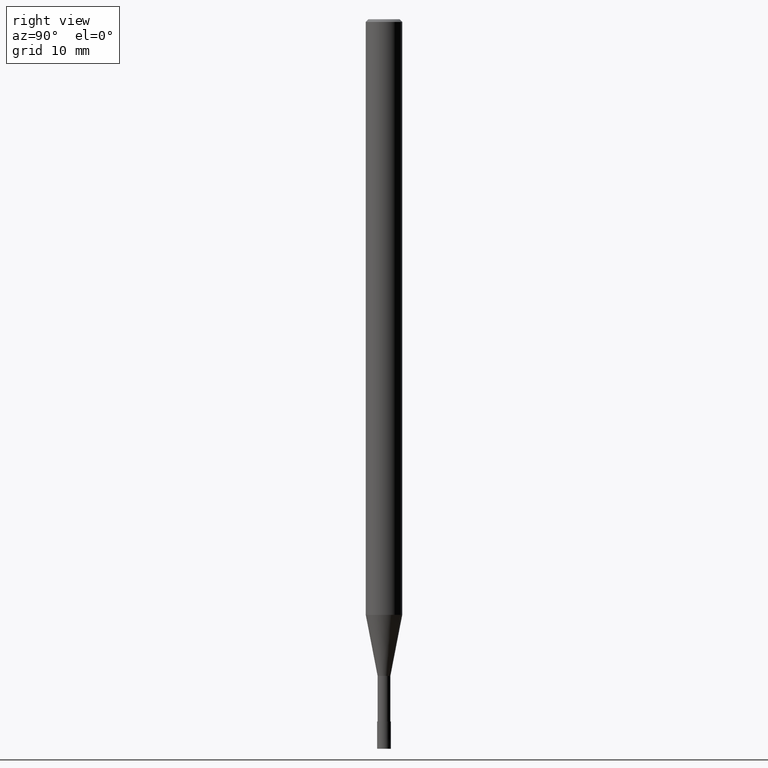
[diagram: clean part render]
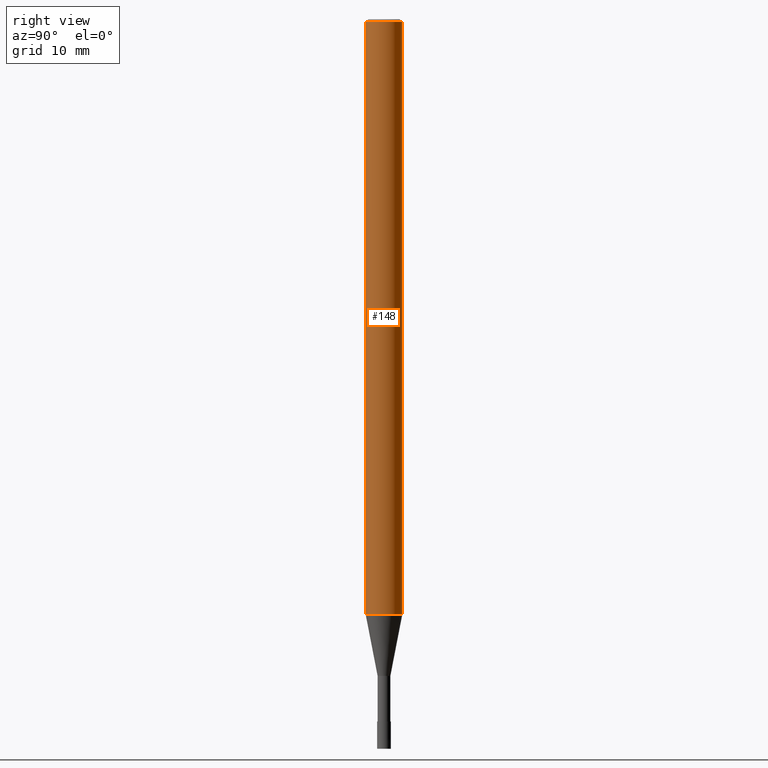
[diagram: same view with one face highlighted and labeled with its STEP entity id]
A machine part, right view. The second image highlights one B-rep face of the part: STEP entity #148.
In plain terms, the highlighted cylindrical surface (edge-blend (fillet) strip) has radius 2 mm, axis along (-0, -0, 1).
Its self-contained STEP definition (entity closure, byte-faithful):
#98=EDGE_CURVE('',#190,#208,#236,.T.);
#144=VERTEX_POINT('',#290);
#148=ADVANCED_FACE('',(#295),#296,.T.);
#178=EDGE_CURVE('',#190,#198,#330,.T.);
#180=EDGE_CURVE('',#144,#208,#332,.T.);
#190=VERTEX_POINT('',#342);
#198=VERTEX_POINT('',#350);
#204=EDGE_CURVE('',#198,#144,#356,.T.);
#208=VERTEX_POINT('',#361);
#236=CIRCLE('',#384,2.0);
#290=CARTESIAN_POINT('',(2.44921270764475E-016,-2.0,-65.312));
#295=FACE_OUTER_BOUND('',#457,.T.);
#296=CYLINDRICAL_SURFACE('',#458,2.0);
#330=LINE('',#499,#500);
#332=LINE('',#503,#504);
#342=CARTESIAN_POINT('',(0.0,2.0,-0.299999999999997));
#350=CARTESIAN_POINT('',(0.0,2.0,-65.312));
#356=CIRCLE('',#535,2.0);
#361=CARTESIAN_POINT('',(2.44921270764475E-016,-2.0,-0.299999999999997));
#384=AXIS2_PLACEMENT_3D('',#556,#557,#558);
#457=EDGE_LOOP('',(#635,#636,#637,#638));
#458=AXIS2_PLACEMENT_3D('',#639,#640,#641);
#499=CARTESIAN_POINT('',(-2.44921270764475E-016,2.0,-32.806));
#500=VECTOR('',#685,1.0);
#503=CARTESIAN_POINT('',(2.44921270764475E-016,-2.0,-32.806));
#504=VECTOR('',#686,1.0);
#535=AXIS2_PLACEMENT_3D('',#703,#704,#705);
#556=CARTESIAN_POINT('',(0.0,0.0,-0.299999999999997));
#557=DIRECTION('',(0.0,0.0,-1.0));
#558=DIRECTION('',(0.0,1.0,0.0));
#635=ORIENTED_EDGE('',*,*,#178,.F.);
#636=ORIENTED_EDGE('',*,*,#98,.T.);
#637=ORIENTED_EDGE('',*,*,#180,.F.);
#638=ORIENTED_EDGE('',*,*,#204,.F.);
#639=CARTESIAN_POINT('',(0.0,0.0,-32.806));
#640=DIRECTION('',(-0.0,-0.0,1.0));
#641=DIRECTION('',(0.0,1.0,0.0));
#685=DIRECTION('',(0.0,0.0,-1.0));
#686=DIRECTION('',(-0.0,-0.0,1.0));
#703=CARTESIAN_POINT('',(0.0,0.0,-65.312));
#704=DIRECTION('',(0.0,0.0,-1.0));
#705=DIRECTION('',(0.0,1.0,0.0));